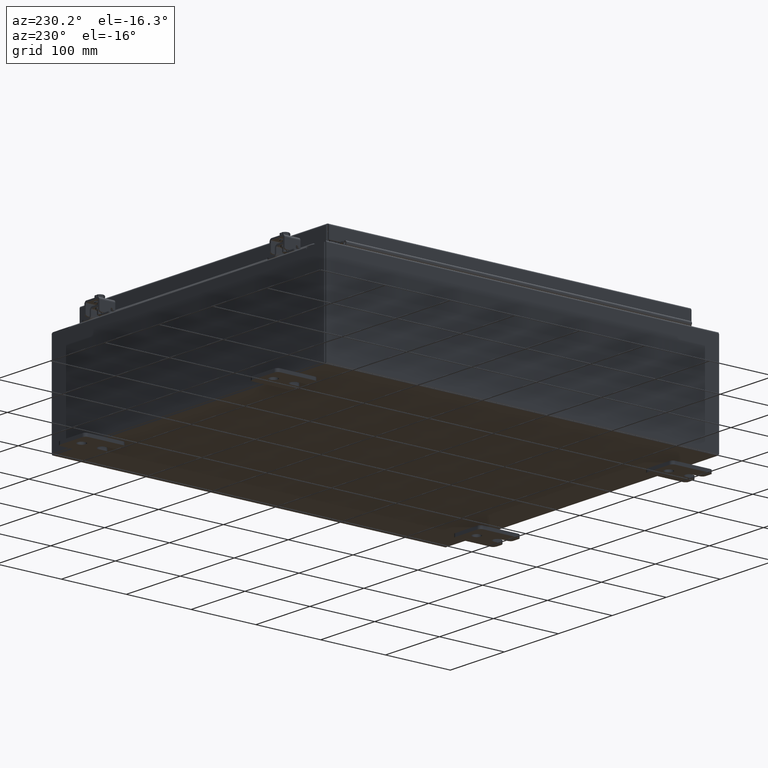
[diagram: clean part render]
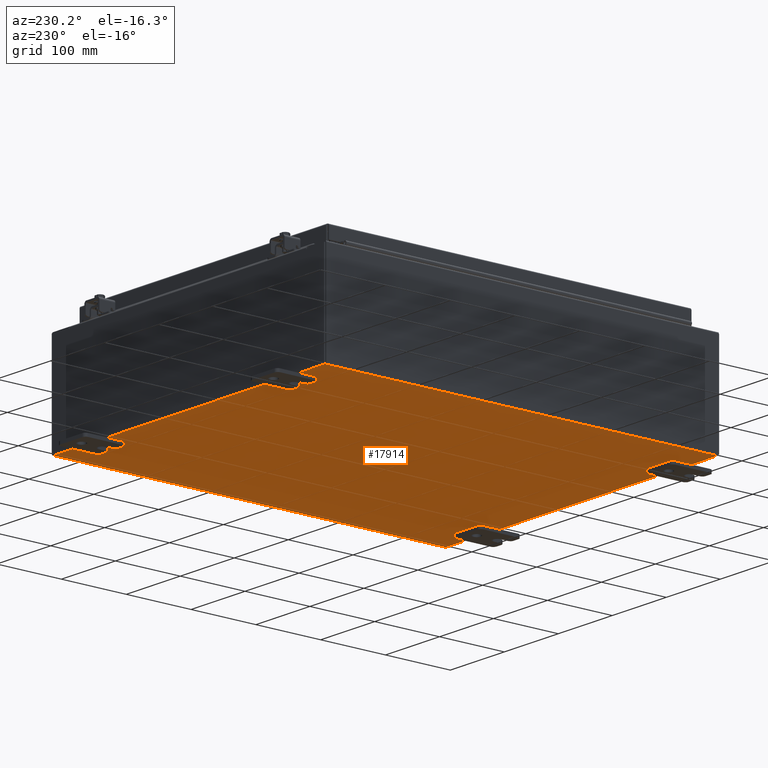
[diagram: same view with one face highlighted and labeled with its STEP entity id]
A machine part, auxiliary view. The second image highlights one B-rep face of the part: STEP entity #17914.
In plain terms, the highlighted planar face has unit normal (0, 0, -1).
Its self-contained STEP definition (entity closure, byte-faithful):
#369 = FACE_OUTER_BOUND ( 'NONE', #13656, .T. ) ;
#1345 = CARTESIAN_POINT ( 'NONE',  ( -10.00000000000000000, -11.92530000000000000, -0.07470000000000000300 ) ) ;
#1360 = ORIENTED_EDGE ( 'NONE', *, *, #29944, .F. ) ;
#1430 = CARTESIAN_POINT ( 'NONE',  ( 0.0000000000000000000, 0.0000000000000000000, -0.07470000000000000300 ) ) ;
#1854 = DIRECTION ( 'NONE',  ( -0.0000000000000000000, -1.000000000000000000, -0.0000000000000000000 ) ) ;
#1883 = LINE ( 'NONE', #8114, #28585 ) ;
#2076 = CARTESIAN_POINT ( 'NONE',  ( 9.912300000000000100, 11.92530000000000000, -0.07469999999999994700 ) ) ;
#3468 = VERTEX_POINT ( 'NONE', #12396 ) ;
#5755 = LINE ( 'NONE', #2076, #10838 ) ;
#7421 = ORIENTED_EDGE ( 'NONE', *, *, #23902, .T. ) ;
#8114 = CARTESIAN_POINT ( 'NONE',  ( -10.00000000000000000, 11.92530000000000000, -0.07470000000000000300 ) ) ;
#8889 = ORIENTED_EDGE ( 'NONE', *, *, #17247, .T. ) ;
#10822 = CARTESIAN_POINT ( 'NONE',  ( 9.912300000000000100, -11.92530000000000000, -0.07470000000000000300 ) ) ;
#10838 = VECTOR ( 'NONE', #1854, 39.37007874015748100 ) ;
#11206 = LINE ( 'NONE', #1345, #17089 ) ;
#11512 = PLANE ( 'NONE',  #24296 ) ;
#12396 = CARTESIAN_POINT ( 'NONE',  ( -9.912300000000000100, 11.92530000000000000, -0.07470000000000000300 ) ) ;
#13656 = EDGE_LOOP ( 'NONE', ( #31620, #8889, #1360, #7421 ) ) ;
#14053 = DIRECTION ( 'NONE',  ( -1.000000000000000000, 0.0000000000000000000, -0.0000000000000000000 ) ) ;
#15608 = VERTEX_POINT ( 'NONE', #18807 ) ;
#16507 = DIRECTION ( 'NONE',  ( -0.0000000000000000000, 1.000000000000000000, -0.0000000000000000000 ) ) ;
#17089 = VECTOR ( 'NONE', #23945, 39.37007874015748100 ) ;
#17247 = EDGE_CURVE ( 'NONE', #20993, #3468, #25133, .T. ) ;
#17914 = ADVANCED_FACE ( 'NONE', ( #369 ), #11512, .T. ) ;
#18807 = CARTESIAN_POINT ( 'NONE',  ( 9.912300000000000100, 11.92529999999999800, -0.07469999999999994700 ) ) ;
#19921 = EDGE_CURVE ( 'NONE', #20993, #32153, #11206, .T. ) ;
#20993 = VERTEX_POINT ( 'NONE', #23552 ) ;
#21426 = CARTESIAN_POINT ( 'NONE',  ( -9.912300000000000100, -11.92530000000000000, -0.07469999999999994700 ) ) ;
#23147 = DIRECTION ( 'NONE',  ( -1.000000000000000000, -0.0000000000000000000, -0.0000000000000000000 ) ) ;
#23552 = CARTESIAN_POINT ( 'NONE',  ( -9.912300000000000100, -11.92529999999999800, -0.07469999999999994700 ) ) ;
#23902 = EDGE_CURVE ( 'NONE', #15608, #32153, #5755, .T. ) ;
#23945 = DIRECTION ( 'NONE',  ( 1.000000000000000000, 0.0000000000000000000, 0.0000000000000000000 ) ) ;
#24296 = AXIS2_PLACEMENT_3D ( 'NONE', #1430, #29069, #14053 ) ;
#24350 = VECTOR ( 'NONE', #16507, 39.37007874015748100 ) ;
#25133 = LINE ( 'NONE', #21426, #24350 ) ;
#28585 = VECTOR ( 'NONE', #23147, 39.37007874015748100 ) ;
#29069 = DIRECTION ( 'NONE',  ( 0.0000000000000000000, 0.0000000000000000000, -1.000000000000000000 ) ) ;
#29944 = EDGE_CURVE ( 'NONE', #15608, #3468, #1883, .T. ) ;
#31620 = ORIENTED_EDGE ( 'NONE', *, *, #19921, .F. ) ;
#32153 = VERTEX_POINT ( 'NONE', #10822 ) ;